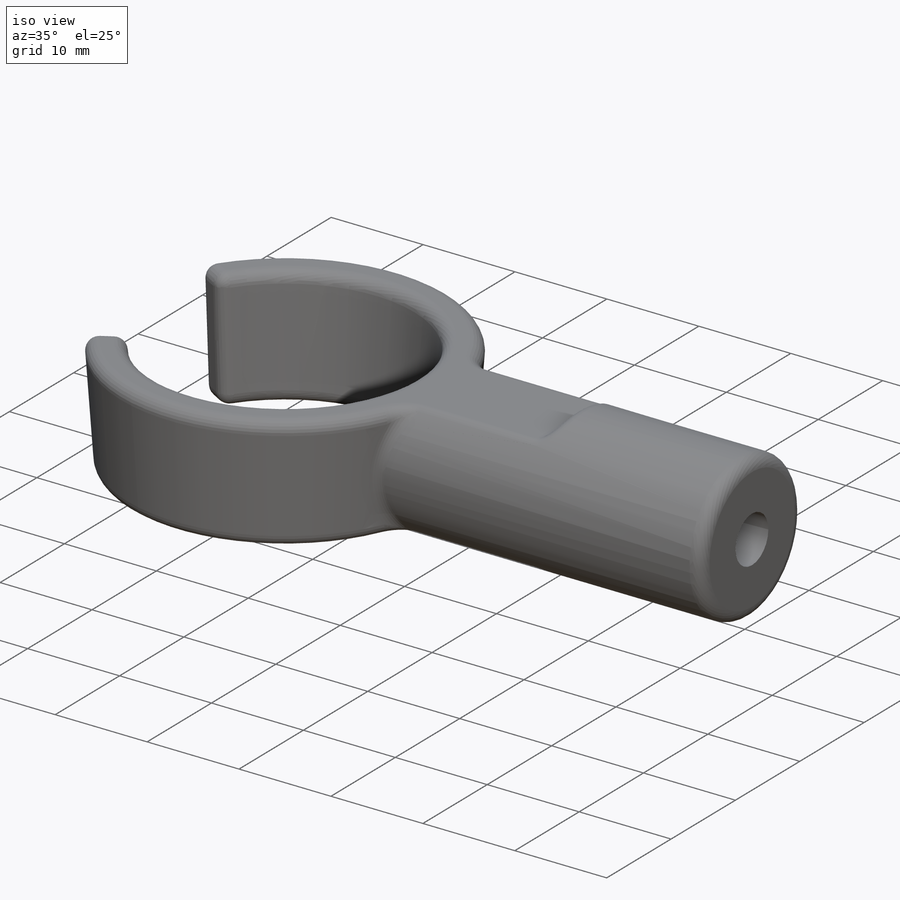
[diagram: iso view]
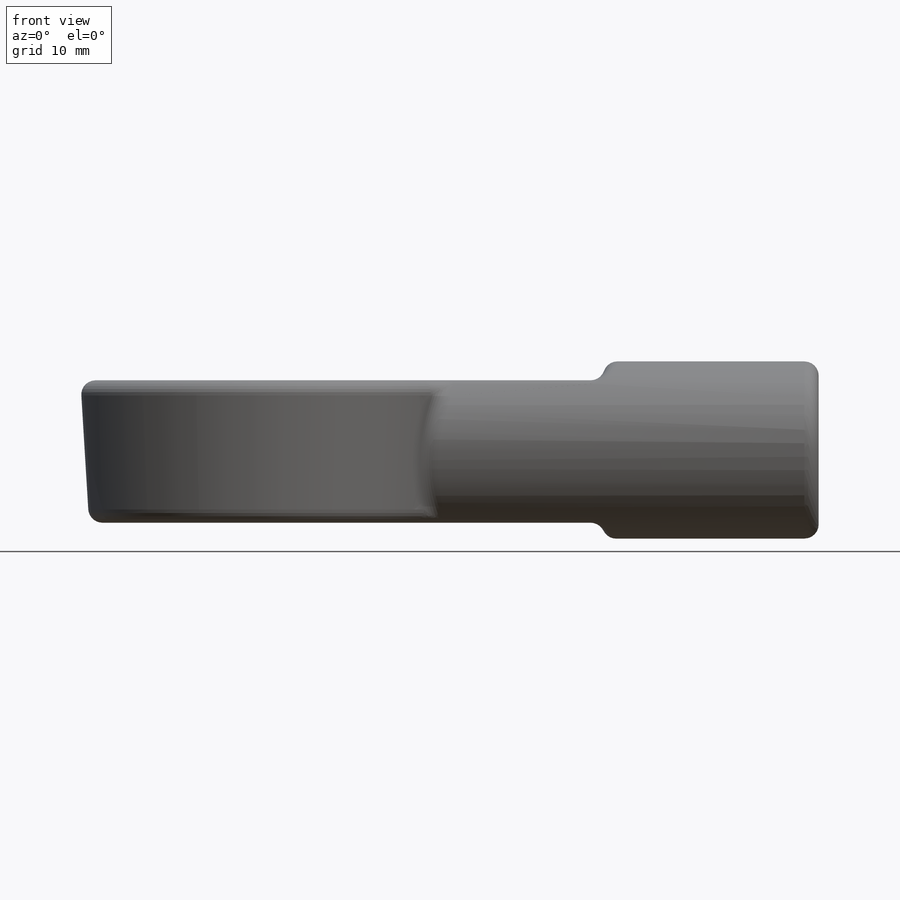
[diagram: front view]
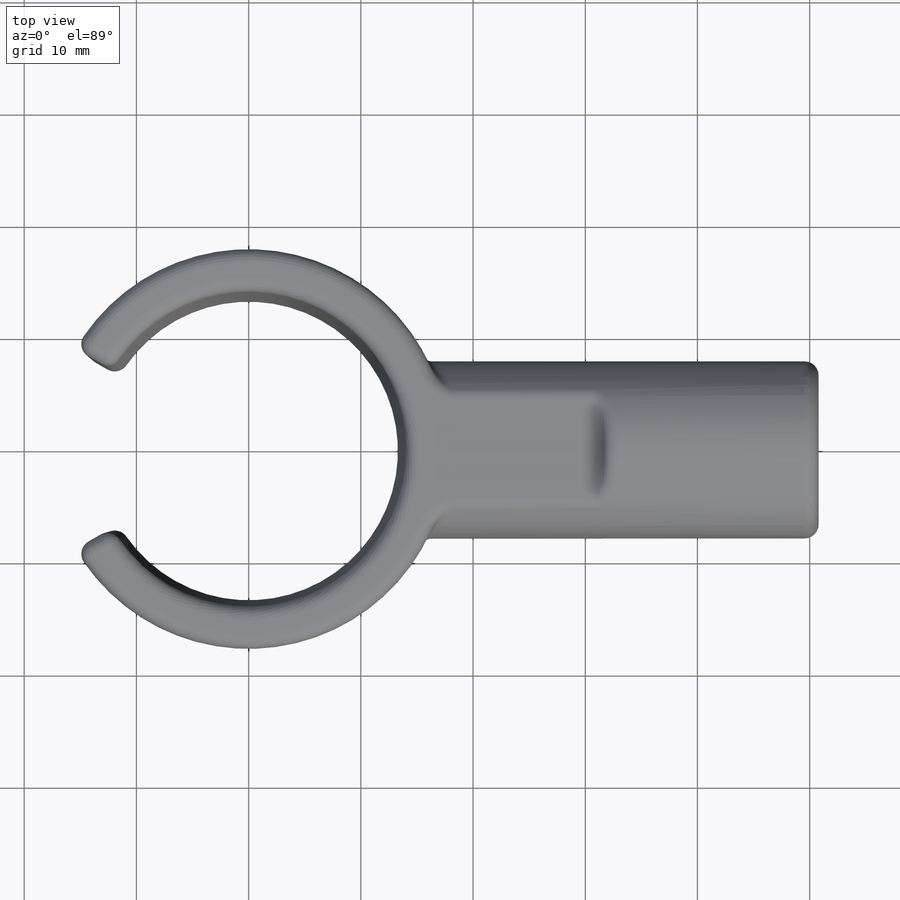
[diagram: top view]
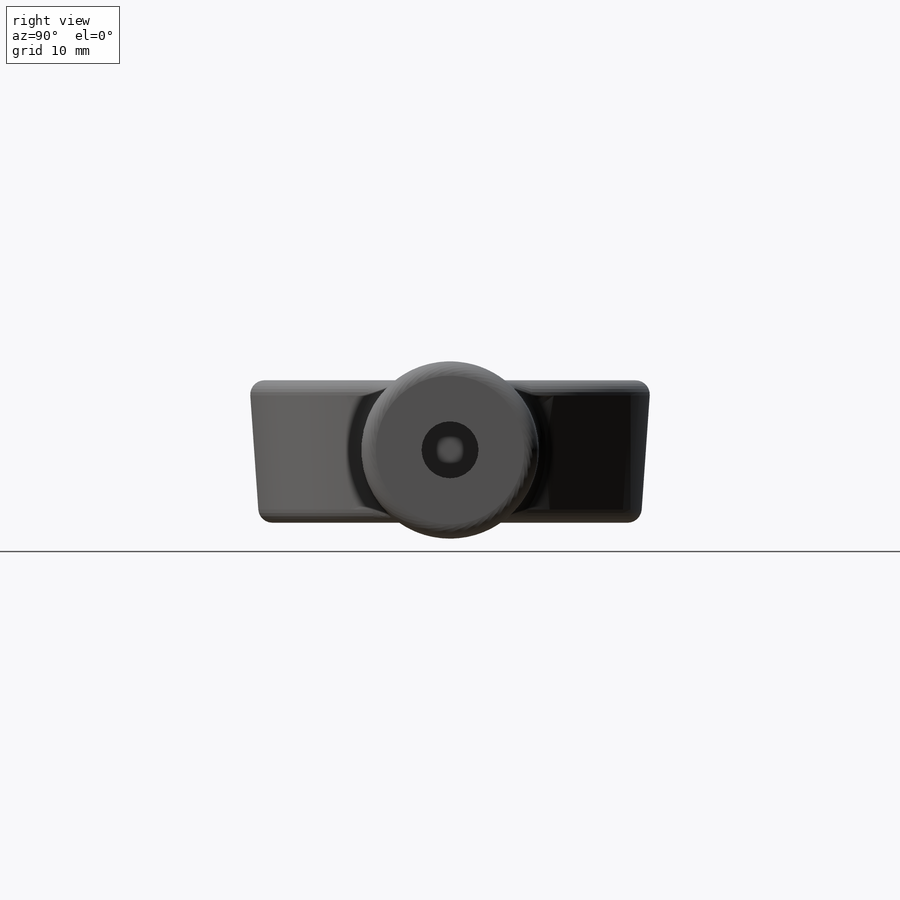
[diagram: right view]
SOLIDWORKS PART (.sldprt)
format: sldprt  version: not decoded by parser v0  size: 436,736 bytes
history: native  units: mm
features: sketch x5, cut_extrude x3, fillet x2, material x1, revolve x1, plane x1, extrude x1 (+11 scaffold rows collapsed)
feature tree (25):
  scaffold x11  (default folders/planes/origin — collapsed)
  material  "Material <not specified>"
  sketch  "Sketch1"  dims[D1=28.194mm D2=26.416mm D3=3.81mm D4=12.7mm]
  revolve  "Revolve1"  Angle=360deg
  plane  "Plane1"  Offset=15.24mm
  sketch  "Sketch3"  dims[D1=15.7988mm]
  extrude  "Boss-Extrude1"  Depth=35.56mm
  sketch  "Sketch4"  dims[c1.D1=~33.765511mm c2.D1=60.0deg]
  cut_extrude  "Cut-Extrude1"  [1 undecoded]
  sketch  "Sketch5"  dims[D1=5.08mm]
  cut_extrude  "Cut-Extrude2"  Depth=30.48mm
  sketch  "Sketch6"
  cut_extrude  "Cut-Extrude3"  Depth=19.05mm
  fillet  "Fillet10"  Radius=1.27mm
  fillet  "Fillet11"  Radius=1.27mm
decode coverage: 10 of 12 modeling features carry decoded parameters
note: ~ marks probable driven/reference dimensions
note: 1 parameter value undecoded
note: suppression state not decoded; provenance and decode notes live in map.json
